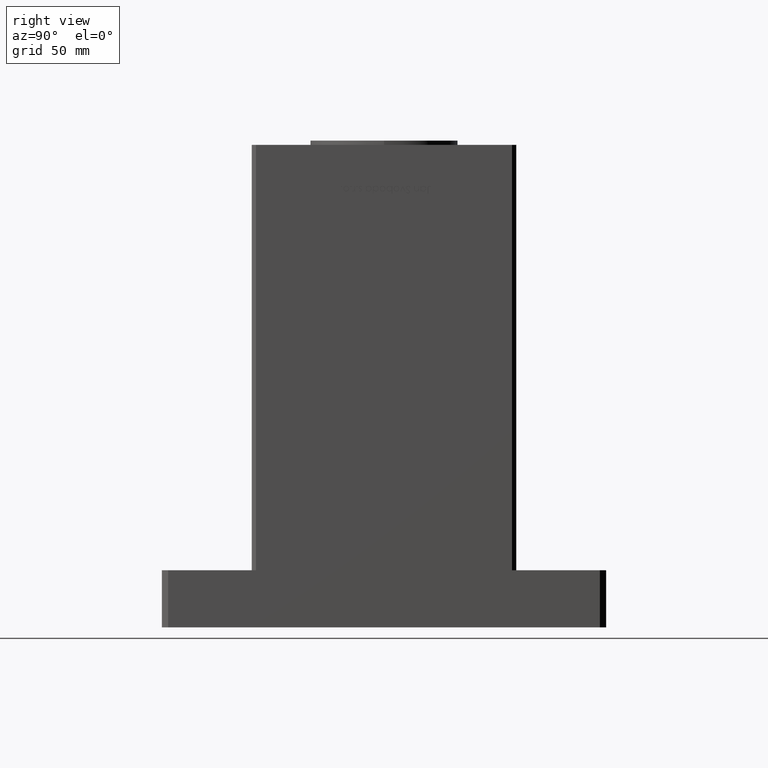
[diagram: clean part render]
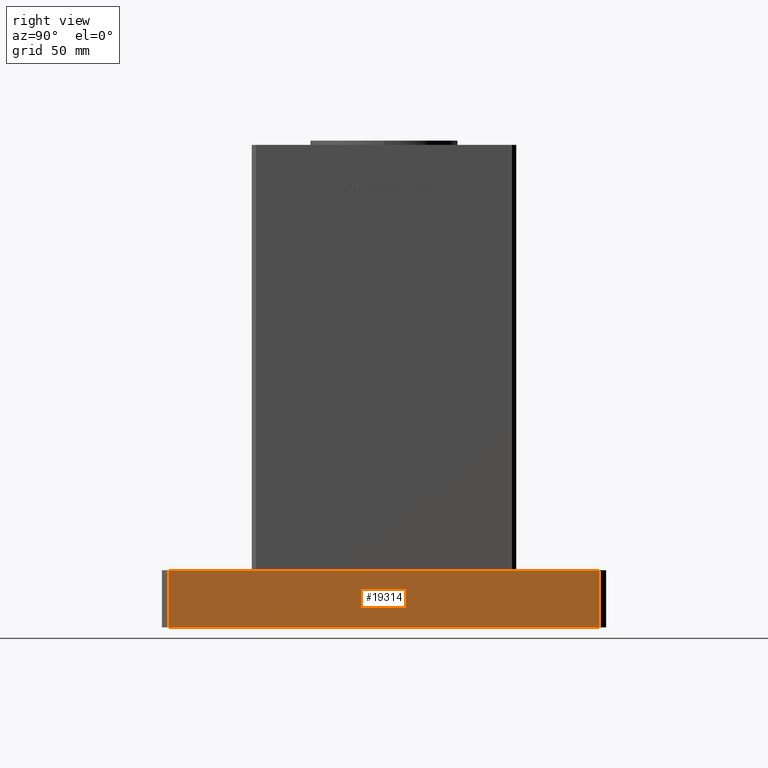
[diagram: same view with one face highlighted and labeled with its STEP entity id]
A machine part, right view. The second image highlights one B-rep face of the part: STEP entity #19314.
In plain terms, the highlighted planar face has unit normal (-1, 0, 0).
Its self-contained STEP definition (entity closure, byte-faithful):
#976 = VECTOR ( 'NONE', #6151, 1000.000000000000000 ) ;
#1602 = CARTESIAN_POINT ( 'NONE',  ( 75.00000000000000000, -101.9999999999999005, 0.000000000000000000 ) ) ;
#1627 = VECTOR ( 'NONE', #21101, 1000.000000000000000 ) ;
#2162 = CARTESIAN_POINT ( 'NONE',  ( 75.00000000000000000, -101.9999999999999005, 27.00000000000000000 ) ) ;
#2281 = EDGE_LOOP ( 'NONE', ( #26811, #17195, #47386, #41730 ) ) ;
#2945 = EDGE_CURVE ( 'NONE', #18622, #14769, #22525, .T. ) ;
#6151 = DIRECTION ( 'NONE',  ( -0.000000000000000000, -0.000000000000000000, -1.000000000000000000 ) ) ;
#9620 = EDGE_CURVE ( 'NONE', #40719, #11695, #9753, .T. ) ;
#9753 = LINE ( 'NONE', #2162, #29273 ) ;
#10027 = VECTOR ( 'NONE', #51558, 1000.000000000000000 ) ;
#11695 = VERTEX_POINT ( 'NONE', #12476 ) ;
#12476 = CARTESIAN_POINT ( 'NONE',  ( 75.00000000000001421, 102.0000000000000142, 27.00000000000000000 ) ) ;
#14769 = VERTEX_POINT ( 'NONE', #40577 ) ;
#15858 = EDGE_CURVE ( 'NONE', #11695, #14769, #46061, .T. ) ;
#17195 = ORIENTED_EDGE ( 'NONE', *, *, #15858, .F. ) ;
#18622 = VERTEX_POINT ( 'NONE', #1602 ) ;
#19314 = ADVANCED_FACE ( 'NONE', ( #49063 ), #28172, .F. ) ;
#20789 = AXIS2_PLACEMENT_3D ( 'NONE', #37129, #52859, #28433 ) ;
#21101 = DIRECTION ( 'NONE',  ( -0.000000000000000000, -0.000000000000000000, -1.000000000000000000 ) ) ;
#22011 = EDGE_CURVE ( 'NONE', #40719, #18622, #34368, .T. ) ;
#22525 = LINE ( 'NONE', #39087, #10027 ) ;
#26039 = DIRECTION ( 'NONE',  ( 6.802837160693364103E-17, 1.000000000000000000, 0.000000000000000000 ) ) ;
#26811 = ORIENTED_EDGE ( 'NONE', *, *, #2945, .T. ) ;
#28172 = PLANE ( 'NONE',  #20789 ) ;
#28433 = DIRECTION ( 'NONE',  ( -6.802837160693364103E-17, -1.000000000000000000, 0.000000000000000000 ) ) ;
#29273 = VECTOR ( 'NONE', #26039, 1000.000000000000000 ) ;
#34368 = LINE ( 'NONE', #39507, #976 ) ;
#37129 = CARTESIAN_POINT ( 'NONE',  ( 75.00000000000000000, -101.9999999999999005, 27.00000000000000000 ) ) ;
#39087 = CARTESIAN_POINT ( 'NONE',  ( 75.00000000000000000, -101.9999999999999005, 0.000000000000000000 ) ) ;
#39507 = CARTESIAN_POINT ( 'NONE',  ( 75.00000000000000000, -101.9999999999999005, 27.00000000000000000 ) ) ;
#40577 = CARTESIAN_POINT ( 'NONE',  ( 75.00000000000001421, 102.0000000000000142, 0.000000000000000000 ) ) ;
#40719 = VERTEX_POINT ( 'NONE', #48583 ) ;
#41730 = ORIENTED_EDGE ( 'NONE', *, *, #22011, .T. ) ;
#46061 = LINE ( 'NONE', #46323, #1627 ) ;
#46323 = CARTESIAN_POINT ( 'NONE',  ( 75.00000000000001421, 102.0000000000000142, 27.00000000000000000 ) ) ;
#47386 = ORIENTED_EDGE ( 'NONE', *, *, #9620, .F. ) ;
#48583 = CARTESIAN_POINT ( 'NONE',  ( 75.00000000000000000, -101.9999999999999005, 27.00000000000000000 ) ) ;
#49063 = FACE_OUTER_BOUND ( 'NONE', #2281, .T. ) ;
#51558 = DIRECTION ( 'NONE',  ( 6.802837160693364103E-17, 1.000000000000000000, 0.000000000000000000 ) ) ;
#52859 = DIRECTION ( 'NONE',  ( -1.000000000000000000, 6.802837160693364103E-17, 0.000000000000000000 ) ) ;